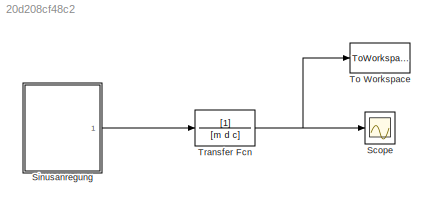
MODEL slx_20d208cf48c2
KIND model
CONFIG AbsTol = auto
CONFIG EnableMultiTasking = off
CONFIG FixedStep = stepSize
CONFIG MaxStep = auto
CONFIG MinStep = auto
CONFIG RelTol = 1e-3
CONFIG SampleTimeConstraint = Unconstrained
CONFIG Solver = ode8
CONFIG SolverName = ode8
CONFIG StartTime = 0.0
CONFIG StopTime = t_max
BLOCK [Scope] Scope
  NumInputPorts = 1
  Ports = [1]
  ScopeSpecificationString = Simulink.scopes.TimeScopeBlockCfg('CurrentConfiguration', extmgr.ConfigurationSet(extmgr.Configuration('Core','General UI',true),extmgr.Configuration('Core','Source UI',true),extmgr.Configuration('Sources','WiredSimulink',true),extmgr.Configuration('Visuals','Time Domain',true,'SerializedDisplays',{struct('MinYLimReal','-0.26593','MaxYLimReal','0.23118','YLabelReal','','MinYLimMag','0.00000','MaxY...<+1361ch>
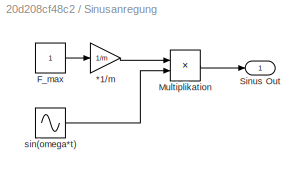
BLOCK [SubSystem] Sinusanregung
  Ports = [0, 1]
  RequestExecContextInheritance = off
  Variant = off
BLOCK [Gain] Sinusanregung/*1//m
  Gain = 1/m
  OutDataTypeStr = Inherit: Inherit via internal rule
  ParamDataTypeStr = Inherit: Inherit via internal rule
  SaturateOnIntegerOverflow = off
BLOCK [Constant] Sinusanregung/F_max
BLOCK [Product] Sinusanregung/Multiplikation
  InputSameDT = off
  OutDataTypeStr = Inherit: Inherit via internal rule
  Ports = [2, 1]
  RndMeth = Floor
  SaturateOnIntegerOverflow = off
BLOCK [Outport] Sinusanregung/Sinus Out
  IconDisplay = Signal name
BLOCK [Sin] Sinusanregung/sin(omega*t)
  Frequency = omega
  Ports = [0, 1]
  SampleTime = 0
BLOCK [ToWorkspace] To Workspace
  FixptAsFi = on
  MaxDataPoints = inf
  Ports = [1]
  SampleTime = -1
  Save2DSignal = 3-D array (concatenate along third dimension)
  VariableName = Gs_Out
BLOCK [TransferFcn] Transfer Fcn
  Denominator = [m d c]
LINE Sinusanregung/*1//m:1 -> Sinusanregung/Multiplikation:1
LINE Sinusanregung/F_max:1 -> Sinusanregung/*1//m:1
LINE Sinusanregung/Multiplikation:1 -> Sinusanregung/Sinus Out:1
LINE Sinusanregung/sin(omega*t):1 -> Sinusanregung/Multiplikation:2
LINE Sinusanregung:1 -> Transfer Fcn:1
NET Transfer Fcn:1 -> Scope:1, To Workspace:1
note: NET lines group one-source signal fan-out (src -> all destinations, sorted); 1:1 wires keep LINE
